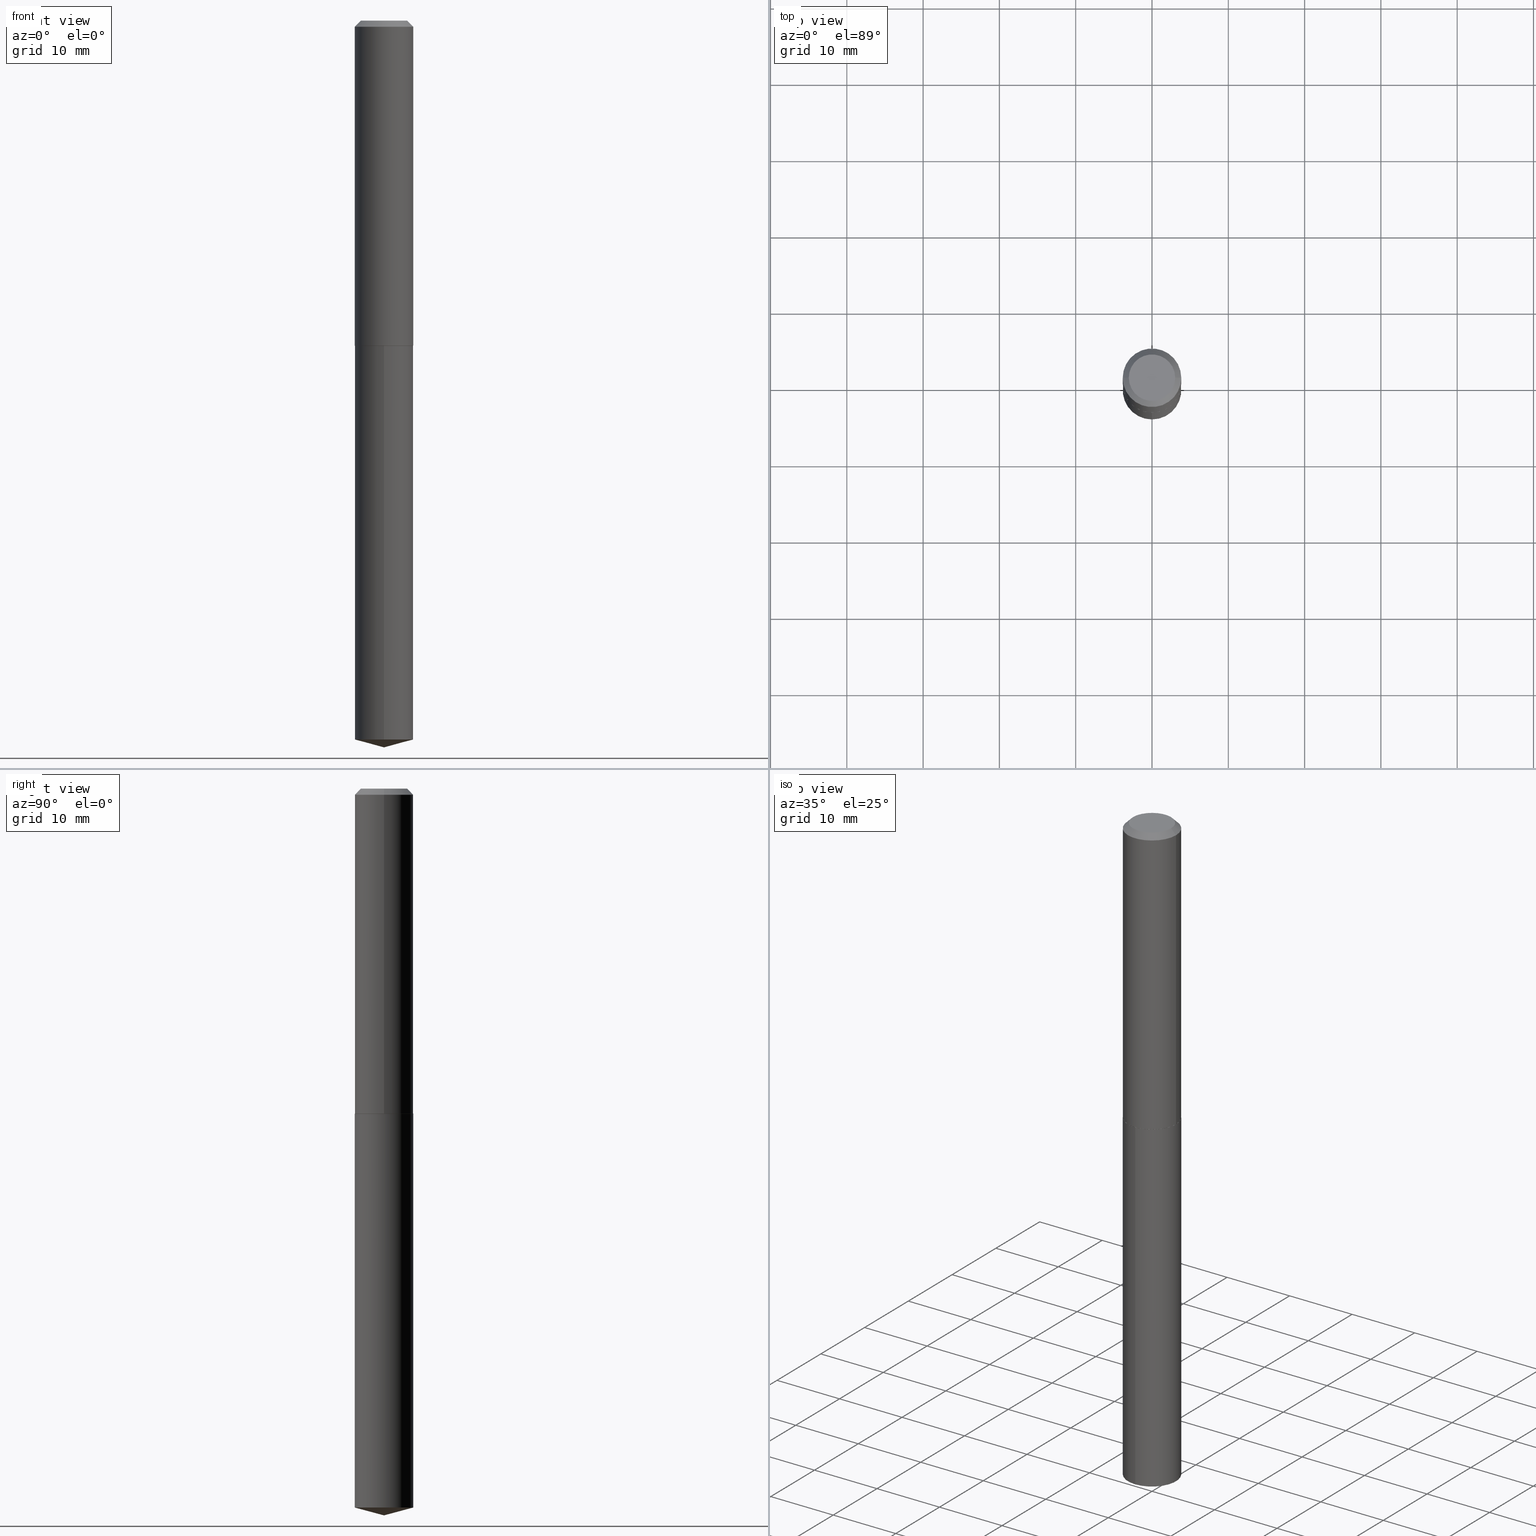
[diagram: canonical four-view strip — front | top / right | iso, engineering-drawing reading convention]
A machine part, canonical four-view strip (front | top / right | iso — engineering-drawing reading convention). The complete STEP part file that produces these views, byte-faithful:
ISO-10303-21;
HEADER;
FILE_DESCRIPTION (( 'STEP AP203' ),
    '1' );
FILE_NAME ('58073.STEP',
    '2024-04-23T01:24:09',
    ( '' ),
    ( '' ),
    'SwSTEP 2.0',
    'SolidWorks 2023',
    '' );
FILE_SCHEMA (( 'CONFIG_CONTROL_DESIGN' ));
ENDSEC;

DATA;
#1 = CALENDAR_DATE ( 2024, 22, 4 ) ;
#2 = DIRECTION ( 'NONE',  ( -2.445468806185136597E-29, 3.491481338843145583E-15, 1.000000000000000000 ) ) ;
#3 = DIRECTION ( 'NONE',  ( 1.000000000000000000, -6.982962677686265133E-15, 0.000000000000000000 ) ) ;
#4 = LINE ( 'NONE', #119, #300 ) ;
#5 = ORIENTED_EDGE ( 'NONE', *, *, #8, .F. ) ;
#6 = ORGANIZATION ( 'UNSPECIFIED', 'UNSPECIFIED', '' ) ;
#7 = FACE_OUTER_BOUND ( 'NONE', #186, .T. ) ;
#8 = EDGE_CURVE ( 'NONE', #70, #251, #219, .T. ) ;
#9 = ORIENTED_EDGE ( 'NONE', *, *, #290, .T. ) ;
#10 = EDGE_CURVE ( 'NONE', #37, #369, #39, .T. ) ;
#11 = DIRECTION ( 'NONE',  ( -2.445468806185136597E-29, 3.491481338843145583E-15, 1.000000000000000000 ) ) ;
#12 = CIRCLE ( 'NONE', #325, 0.1505000000000000782 ) ;
#13 = ORIENTED_EDGE ( 'NONE', *, *, #10, .T. ) ;
#14 = EDGE_LOOP ( 'NONE', ( #134, #77 ) ) ;
#15 = ORIENTED_EDGE ( 'NONE', *, *, #220, .T. ) ;
#16 = EDGE_CURVE ( 'NONE', #185, #73, #54, .T. ) ;
#17 = CARTESIAN_POINT ( 'NONE',  ( -0.1510000000000001896, -4.780548933572781158E-15, -1.676500000000000323 ) ) ;
#18 = DIRECTION ( 'NONE',  ( 0.7071067811865112684, -2.468850131081876830E-15, 0.7071067811865837660 ) ) ;
#19 = ORIENTED_EDGE ( 'NONE', *, *, #153, .T. ) ;
#20 = CYLINDRICAL_SURFACE ( 'NONE', #334, 0.1509999999999999953 ) ;
#21 = ADVANCED_BREP_SHAPE_REPRESENTATION ( '58073', ( #243, #112, #34 ), #327 ) ;
#22 = CIRCLE ( 'NONE', #122, 0.1509999999999999953 ) ;
#23 = AXIS2_PLACEMENT_3D ( 'NONE', #295, #246, #239 ) ;
#24 = CARTESIAN_POINT ( 'NONE',  ( 7.642090019328601786E-31, -1.091087918388490144E-16, -0.03125000000000020123 ) ) ;
#25 = DATE_AND_TIME ( #1, #53 ) ;
#26 = DIRECTION ( 'NONE',  ( -1.000000000000000000, 6.982962677686266711E-15, 0.000000000000000000 ) ) ;
#27 = CARTESIAN_POINT ( 'NONE',  ( 9.170534558798153806E-29, -1.309301702016671200E-14, -3.750000000000000000 ) ) ;
#28 = AXIS2_PLACEMENT_3D ( 'NONE', #89, #183, #272 ) ;
#29 = ADVANCED_FACE ( 'NONE', ( #249 ), #221, .T. ) ;
#30 = CYLINDRICAL_SURFACE ( 'NONE', #242, 0.1509999999999999953 ) ;
#31 = DIRECTION ( 'NONE',  ( -6.982962677686265133E-15, -1.000000000000000000, 3.618341713462600054E-15 ) ) ;
#32 = DIRECTION ( 'NONE',  ( -2.445535815285872487E-29, 3.491385377996970699E-15, 1.000000000000000000 ) ) ;
#33 = ADVANCED_FACE ( 'NONE', ( #136 ), #127, .T. ) ;
#34 = AXIS2_PLACEMENT_3D ( 'NONE', #224, #188, #318 ) ;
#35 = CARTESIAN_POINT ( 'NONE',  ( 7.642090019328601786E-31, -1.091087918388490144E-16, -0.03125000000000020123 ) ) ;
#36 = ORIENTED_EDGE ( 'NONE', *, *, #316, .F. ) ;
#37 = VERTEX_POINT ( 'NONE', #143 ) ;
#38 = ADVANCED_FACE ( 'NONE', ( #79 ), #20, .T. ) ;
#39 = LINE ( 'NONE', #344, #171 ) ;
#40 = VERTEX_POINT ( 'NONE', #200 ) ;
#41 = CIRCLE ( 'NONE', #231, 0.1509999999999999953 ) ;
#42 = ORIENTED_EDGE ( 'NONE', *, *, #166, .F. ) ;
#43 = PERSON_AND_ORGANIZATION ( #160, #6 ) ;
#44 = ORIENTED_EDGE ( 'NONE', *, *, #197, .F. ) ;
#45 = CIRCLE ( 'NONE', #229, 0.1509999999999999953 ) ;
#46 = DIRECTION ( 'NONE',  ( 1.000000000000000000, -6.982962677686265133E-15, 0.000000000000000000 ) ) ;
#47 = DATE_AND_TIME ( #227, #206 ) ;
#48 = LINE ( 'NONE', #167, #60 ) ;
#49 = DATE_TIME_ROLE ( 'creation_date' ) ;
#50 = DIRECTION ( 'NONE',  ( -2.445535815285872767E-29, 3.491385377996970699E-15, 1.000000000000000000 ) ) ;
#51 = DIRECTION ( 'NONE',  ( -2.445535815285872487E-29, 3.491385377996970699E-15, 1.000000000000000000 ) ) ;
#52 = AXIS2_PLACEMENT_3D ( 'NONE', #145, #354, #103 ) ;
#53 = LOCAL_TIME ( 21, 24, 9.000000000000000000, #63 ) ;
#54 = CIRCLE ( 'NONE', #205, 0.1197499999999999953 ) ;
#55 = CARTESIAN_POINT ( 'NONE',  ( 0.000000000000000000, 0.000000000000000000, 0.000000000000000000 ) ) ;
#56 = CARTESIAN_POINT ( 'NONE',  ( 4.101051187972474781E-29, -5.855214205239955684E-15, -1.677000000000000268 ) ) ;
#57 = PRODUCT_DEFINITION ( 'UNKNOWN', '', #382, #68 ) ;
#58 = DIRECTION ( 'NONE',  ( -2.445468806185136597E-29, 3.491481338843145583E-15, 1.000000000000000000 ) ) ;
#59 = AXIS2_PLACEMENT_3D ( 'NONE', #149, #266, #304 ) ;
#60 = VECTOR ( 'NONE', #18, 39.37007874015748143 ) ;
#61 = DIRECTION ( 'NONE',  ( -2.445535815285872487E-29, 3.491385377996970699E-15, 1.000000000000000000 ) ) ;
#62 = VERTEX_POINT ( 'NONE', #138 ) ;
#63 = COORDINATED_UNIVERSAL_TIME_OFFSET ( 5, 0, .BEHIND. ) ;
#64 = CC_DESIGN_PERSON_AND_ORGANIZATION_ASSIGNMENT ( #384, #376, ( #133 ) ) ;
#65 = CARTESIAN_POINT ( 'NONE',  ( 9.170759307322020634E-29, -1.309269516748864239E-14, -3.750000000000000000 ) ) ;
#66 = ORIENTED_EDGE ( 'NONE', *, *, #275, .T. ) ;
#67 = FACE_OUTER_BOUND ( 'NONE', #314, .T. ) ;
#68 = DESIGN_CONTEXT ( 'detailed design', #152, 'design' ) ;
#69 = APPROVAL_PERSON_ORGANIZATION ( #230, #377, #106 ) ;
#70 = VERTEX_POINT ( 'NONE', #169 ) ;
#71 = DIRECTION ( 'NONE',  ( -2.445535815285872767E-29, 3.491385377996970699E-15, 1.000000000000000000 ) ) ;
#72 = ADVANCED_FACE ( 'NONE', ( #232 ), #158, .T. ) ;
#73 = VERTEX_POINT ( 'NONE', #165 ) ;
#74 = LENGTH_MEASURE_WITH_UNIT ( LENGTH_MEASURE( 0.02539999999999999897 ), #250 );
#75 = APPROVAL_PERSON_ORGANIZATION ( #43, #260, #132 ) ;
#76 = EDGE_LOOP ( 'NONE', ( #42, #131 ) ) ;
#77 = ORIENTED_EDGE ( 'NONE', *, *, #16, .T. ) ;
#78 = CALENDAR_DATE ( 2024, 22, 4 ) ;
#79 = FACE_OUTER_BOUND ( 'NONE', #282, .T. ) ;
#80 = CARTESIAN_POINT ( 'NONE',  ( 1.072919530997842164E-15, 0.1509999999999941389, -1.677000000000000712 ) ) ;
#81 = EDGE_CURVE ( 'NONE', #40, #99, #84, .T. ) ;
#82 = DIRECTION ( 'NONE',  ( -2.445535815285872487E-29, 3.491385377996970699E-15, 1.000000000000000000 ) ) ;
#83 = CARTESIAN_POINT ( 'NONE',  ( 4.101051187972474781E-29, -5.855214205239955684E-15, -1.677000000000000268 ) ) ;
#84 = LINE ( 'NONE', #196, #366 ) ;
#85 = VECTOR ( 'NONE', #71, 39.37007874015748143 ) ;
#86 = LOCAL_TIME ( 21, 24, 9.000000000000000000, #355 ) ;
#87 = FACE_OUTER_BOUND ( 'NONE', #296, .T. ) ;
#88 = EDGE_CURVE ( 'NONE', #62, #164, #358, .T. ) ;
#89 = CARTESIAN_POINT ( 'NONE',  ( 4.099828453569381980E-29, -5.853468464570534180E-15, -1.676500000000000323 ) ) ;
#90 = FACE_OUTER_BOUND ( 'NONE', #194, .T. ) ;
#91 = ADVANCED_FACE ( 'NONE', ( #265 ), #141, .F. ) ;
#92 = CIRCLE ( 'NONE', #23, 0.1197499999999999953 ) ;
#93 = CARTESIAN_POINT ( 'NONE',  ( -0.1505000000000000782, -4.783198160746893147E-15, -1.677000000000000490 ) ) ;
#94 = DIRECTION ( 'NONE',  ( -6.982962677686267499E-15, -1.000000000000000000, 3.510303681827568252E-15 ) ) ;
#95 = ORIENTED_EDGE ( 'NONE', *, *, #174, .T. ) ;
#96 = ORIENTED_EDGE ( 'NONE', *, *, #10, .F. ) ;
#97 = ADVANCED_FACE ( 'NONE', ( #111 ), #226, .F. ) ;
#98 = EDGE_LOOP ( 'NONE', ( #96, #303, #222, #379 ) ) ;
#99 = VERTEX_POINT ( 'NONE', #387 ) ;
#100 = CONICAL_SURFACE ( 'NONE', #59, 146.9311341562580253, 1.308996938995752313 ) ;
#101 = ORIENTED_EDGE ( 'NONE', *, *, #166, .T. ) ;
#102 = PERSON_AND_ORGANIZATION ( #160, #6 ) ;
#103 = DIRECTION ( 'NONE',  ( -1.000000000000000000, 6.982962677686266711E-15, 0.000000000000000000 ) ) ;
#104 = DIRECTION ( 'NONE',  ( 2.445535815285872206E-29, -3.491385377996970699E-15, -1.000000000000000000 ) ) ;
#105 = EDGE_CURVE ( 'NONE', #185, #99, #203, .T. ) ;
#106 = APPROVAL_ROLE ( '' ) ;
#107 = AXIS2_PLACEMENT_3D ( 'NONE', #332, #58, #301 ) ;
#108 = CARTESIAN_POINT ( 'NONE',  ( 0.1197499999999999953, -9.832943123677455583E-16, 3.122849337889354629E-19 ) ) ;
#109 = DATE_TIME_ROLE ( 'classification_date' ) ;
#110 = LINE ( 'NONE', #17, #383 ) ;
#111 = FACE_OUTER_BOUND ( 'NONE', #14, .T. ) ;
#112 = MANIFOLD_SOLID_BREP ( 'Body-Move/Copy2[2]', #261 ) ;
#113 = APPROVAL_DATE_TIME ( #25, #312 ) ;
#114 = DIRECTION ( 'NONE',  ( -2.445468806185136597E-29, 3.491481338843145583E-15, 1.000000000000000000 ) ) ;
#115 = VECTOR ( 'NONE', #237, 39.37007874015748143 ) ;
#116 = DIRECTION ( 'NONE',  ( 1.000000000000000000, -6.982962677686267499E-15, 0.000000000000000000 ) ) ;
#117 = DIRECTION ( 'NONE',  ( -6.982962677686265133E-15, -1.000000000000000000, 3.618341713462600054E-15 ) ) ;
#118 = CC_DESIGN_PERSON_AND_ORGANIZATION_ASSIGNMENT ( #102, #255, ( #382 ) ) ;
#119 = CARTESIAN_POINT ( 'NONE',  ( -0.1509999999999999953, 9.453185724917773146E-16, -0.03125000000000020123 ) ) ;
#120 = ORIENTED_EDGE ( 'NONE', *, *, #284, .T. ) ;
#121 = AXIS2_PLACEMENT_3D ( 'NONE', #24, #324, #26 ) ;
#122 = AXIS2_PLACEMENT_3D ( 'NONE', #56, #305, #238 ) ;
#123 = DIRECTION ( 'NONE',  ( -2.445535815285872487E-29, 3.491385377996970699E-15, 1.000000000000000000 ) ) ;
#124 = CC_DESIGN_PERSON_AND_ORGANIZATION_ASSIGNMENT ( #125, #247, ( #273 ) ) ;
#125 = PERSON_AND_ORGANIZATION ( #160, #6 ) ;
#126 = ORIENTED_EDGE ( 'NONE', *, *, #105, .T. ) ;
#127 = CONICAL_SURFACE ( 'NONE', #121, 0.1509999999999999953, 0.7853981633974449483 ) ;
#128 = DIRECTION ( 'NONE',  ( 1.000000000000000000, -6.982962677686267499E-15, 4.876174640205639885E-29 ) ) ;
#129 = ORIENTED_EDGE ( 'NONE', *, *, #275, .F. ) ;
#130 = CC_DESIGN_PERSON_AND_ORGANIZATION_ASSIGNMENT ( #292, #320, ( #382 ) ) ;
#131 = ORIENTED_EDGE ( 'NONE', *, *, #329, .F. ) ;
#132 = APPROVAL_ROLE ( '' ) ;
#133 = SECURITY_CLASSIFICATION ( '', '', #170 ) ;
#134 = ORIENTED_EDGE ( 'NONE', *, *, #197, .T. ) ;
#135 = APPROVAL_DATE_TIME ( #168, #260 ) ;
#136 = FACE_OUTER_BOUND ( 'NONE', #308, .T. ) ;
#137 = PERSON_AND_ORGANIZATION ( #160, #6 ) ;
#138 = CARTESIAN_POINT ( 'NONE',  ( 1.072919530997841769E-15, 0.1509999999999870335, -3.709539671942902128 ) ) ;
#139 = CIRCLE ( 'NONE', #349, 0.1510000000000001896 ) ;
#140 = AXIS2_PLACEMENT_3D ( 'NONE', #35, #114, #3 ) ;
#141 = PLANE ( 'NONE',  #306 ) ;
#142 = DATE_AND_TIME ( #289, #253 ) ;
#143 = CARTESIAN_POINT ( 'NONE',  ( -0.1510000000000001896, -4.780548933572781158E-15, -1.676500000000000323 ) ) ;
#144 = EDGE_CURVE ( 'NONE', #369, #99, #179, .T. ) ;
#145 = CARTESIAN_POINT ( 'NONE',  ( 7.642090019328601786E-31, -1.091087918388490144E-16, -0.03125000000000020123 ) ) ;
#146 = DIRECTION ( 'NONE',  ( -6.745023994389846233E-15, -0.9659258262890687563, 0.2588190451025191852 ) ) ;
#147 = CC_DESIGN_APPROVAL ( #377, ( #57 ) ) ;
#148 = CARTESIAN_POINT ( 'NONE',  ( 4.101051187972474781E-29, -5.855214205239955684E-15, -1.677000000000000268 ) ) ;
#149 = CARTESIAN_POINT ( 'NONE',  ( -8.711029067661992951E-28, 1.243632611501475433E-13, 35.62007874015748143 ) ) ;
#150 = CARTESIAN_POINT ( 'NONE',  ( 4.101051187972475342E-29, -5.855214205239956472E-15, -1.677000000000000490 ) ) ;
#151 = LOCAL_TIME ( 21, 24, 9.000000000000000000, #353 ) ;
#152 = APPLICATION_CONTEXT ( 'configuration controlled 3d designs of mechanical parts and assemblies' ) ;
#153 = EDGE_CURVE ( 'NONE', #372, #37, #110, .T. ) ;
#154 = APPLICATION_PROTOCOL_DEFINITION ( 'international standard', 'config_control_design', 1994, #309 ) ;
#155 = ORIENTED_EDGE ( 'NONE', *, *, #245, .T. ) ;
#156 = DIRECTION ( 'NONE',  ( -2.445468806185136877E-29, 3.491481338843145188E-15, 1.000000000000000000 ) ) ;
#157 = AXIS2_PLACEMENT_3D ( 'NONE', #259, #359, #321 ) ;
#158 = CONICAL_SURFACE ( 'NONE', #52, 0.1509999999999999953, 0.7853981633974449483 ) ;
#159 = ORIENTED_EDGE ( 'NONE', *, *, #316, .T. ) ;
#160 = PERSON ( 'UNSPECIFIED', 'UNSPECIFIED', 'UNSPECIFIED', ('UNSPECIFIED'), ('UNSPECIFIED'), ('UNSPECIFIED') ) ;
#161 = PRODUCT_DEFINITION_SHAPE ( 'NONE', 'NONE',  #57 ) ;
#162 = ORIENTED_EDGE ( 'NONE', *, *, #88, .F. ) ;
#163 = DATE_AND_TIME ( #78, #151 ) ;
#164 = VERTEX_POINT ( 'NONE', #80 ) ;
#165 = CARTESIAN_POINT ( 'NONE',  ( -0.1197499999999999953, 8.907641765723537504E-16, 3.122849337765353630E-19 ) ) ;
#166 = EDGE_CURVE ( 'NONE', #340, #372, #12, .T. ) ;
#167 = CARTESIAN_POINT ( 'NONE',  ( 0.1510000000000001896, -6.907895828901161779E-15, -1.676500000000000323 ) ) ;
#168 = DATE_AND_TIME ( #263, #86 ) ;
#169 = CARTESIAN_POINT ( 'NONE',  ( -1.054427364330535302E-15, -0.1510000000000129294, -3.709539671942900796 ) ) ;
#170 = SECURITY_CLASSIFICATION_LEVEL ( 'unclassified' ) ;
#171 = VECTOR ( 'NONE', #156, 39.37007874015748143 ) ;
#172 = AXIS2_PLACEMENT_3D ( 'NONE', #150, #2, #116 ) ;
#173 = DIRECTION ( 'NONE',  ( -6.982962677686265133E-15, -1.000000000000000000, 3.618341713462600054E-15 ) ) ;
#174 = EDGE_CURVE ( 'NONE', #164, #251, #41, .T. ) ;
#175 = ORIENTED_EDGE ( 'NONE', *, *, #362, .F. ) ;
#176 = FACE_OUTER_BOUND ( 'NONE', #98, .T. ) ;
#177 = CARTESIAN_POINT ( 'NONE',  ( 4.099828453569381980E-29, -5.853468464570534180E-15, -1.676500000000000323 ) ) ;
#178 = DIRECTION ( 'NONE',  ( -2.445468806185136597E-29, 3.491481338843145583E-15, 1.000000000000000000 ) ) ;
#179 = CIRCLE ( 'NONE', #214, 0.1509999999999999953 ) ;
#180 = CARTESIAN_POINT ( 'NONE',  ( 1.975396014675572700E-29, -8.899273398180131149E-15, -1.677000000000000268 ) ) ;
#181 = ORIENTED_EDGE ( 'NONE', *, *, #341, .F. ) ;
#182 = CARTESIAN_POINT ( 'NONE',  ( 9.071699751698236778E-29, -1.295159349606016009E-14, -3.709539671942901684 ) ) ;
#183 = DIRECTION ( 'NONE',  ( -2.445468806185136597E-29, 3.491481338843145583E-15, 1.000000000000000000 ) ) ;
#184 = ADVANCED_FACE ( 'NONE', ( #176 ), #298, .T. ) ;
#185 = VERTEX_POINT ( 'NONE', #108 ) ;
#186 = EDGE_LOOP ( 'NONE', ( #330, #215, #283, #181 ) ) ;
#187 = EDGE_CURVE ( 'NONE', #340, #40, #48, .T. ) ;
#188 = DIRECTION ( 'NONE',  ( 0.000000000000000000, 0.000000000000000000, 1.000000000000000000 ) ) ;
#189 = ORIENTED_EDGE ( 'NONE', *, *, #290, .F. ) ;
#190 = CLOSED_SHELL ( 'NONE', ( #38, #310, #211, #233, #91 ) ) ;
#191 = VECTOR ( 'NONE', #146, 39.37007874015748143 ) ;
#192 = AXIS2_PLACEMENT_3D ( 'NONE', #228, #198, #322 ) ;
#193 =( NAMED_UNIT ( * ) SI_UNIT ( $, .STERADIAN. ) SOLID_ANGLE_UNIT ( ) );
#194 = EDGE_LOOP ( 'NONE', ( #36, #9, #317 ) ) ;
#195 = ORIENTED_EDGE ( 'NONE', *, *, #88, .T. ) ;
#196 = CARTESIAN_POINT ( 'NONE',  ( 0.1510000000000001064, -1.054427364330627007E-15, 7.363026931451867700E-30 ) ) ;
#197 = EDGE_CURVE ( 'NONE', #73, #185, #92, .T. ) ;
#198 = DIRECTION ( 'NONE',  ( -2.445468806185136597E-29, 3.491481338843145583E-15, 1.000000000000000000 ) ) ;
#199 = CC_DESIGN_DATE_AND_TIME_ASSIGNMENT ( #47, #109, ( #133 ) ) ;
#200 = CARTESIAN_POINT ( 'NONE',  ( 0.1510000000000001896, -6.907895828901161779E-15, -1.676500000000000323 ) ) ;
#201 = APPROVAL_DATE_TIME ( #142, #377 ) ;
#202 = CC_DESIGN_PERSON_AND_ORGANIZATION_ASSIGNMENT ( #137, #258, ( #57 ) ) ;
#203 = LINE ( 'NONE', #356, #313 ) ;
#204 = EDGE_LOOP ( 'NONE', ( #338, #126, #120, #175 ) ) ;
#205 = AXIS2_PLACEMENT_3D ( 'NONE', #280, #11, #128 ) ;
#206 = LOCAL_TIME ( 21, 24, 9.000000000000000000, #374 ) ;
#207 = CARTESIAN_POINT ( 'NONE',  ( 7.642090019328601786E-31, -1.091087918388490144E-16, -0.03125000000000020123 ) ) ;
#208 = VERTEX_POINT ( 'NONE', #65 ) ;
#209 = PLANE ( 'NONE',  #373 ) ;
#210 = CARTESIAN_POINT ( 'NONE',  ( 9.170761278101281987E-29, -1.309269516748864239E-14, -3.750000000000000000 ) ) ;
#211 = ADVANCED_FACE ( 'NONE', ( #336 ), #381, .T. ) ;
#212 = CARTESIAN_POINT ( 'NONE',  ( 9.071699751698236778E-29, -1.295159349606016009E-14, -3.709539671942901684 ) ) ;
#213 = AXIS2_PLACEMENT_3D ( 'NONE', #276, #360, #94 ) ;
#214 = AXIS2_PLACEMENT_3D ( 'NONE', #207, #323, #46 ) ;
#215 = ORIENTED_EDGE ( 'NONE', *, *, #329, .T. ) ;
#216 = DIRECTION ( 'NONE',  ( 1.000000000000000000, -6.982962677686265922E-15, 4.876176775795935793E-29 ) ) ;
#217 = ORIENTED_EDGE ( 'NONE', *, *, #144, .T. ) ;
#218 = CC_DESIGN_APPROVAL ( #312, ( #133 ) ) ;
#219 = LINE ( 'NONE', #343, #85 ) ;
#220 = EDGE_CURVE ( 'NONE', #40, #37, #139, .T. ) ;
#221 = CYLINDRICAL_SURFACE ( 'NONE', #277, 0.1510000000000001064 ) ;
#222 = ORIENTED_EDGE ( 'NONE', *, *, #81, .T. ) ;
#223 = APPROVAL_PERSON_ORGANIZATION ( #357, #312, #240 ) ;
#224 = CARTESIAN_POINT ( 'NONE',  ( 0.000000000000000000, 0.000000000000000000, 0.000000000000000000 ) ) ;
#225 = ORIENTED_EDGE ( 'NONE', *, *, #105, .F. ) ;
#226 = PLANE ( 'NONE',  #157 ) ;
#227 = CALENDAR_DATE ( 2024, 22, 4 ) ;
#228 = CARTESIAN_POINT ( 'NONE',  ( 0.000000000000000000, 0.000000000000000000, 0.000000000000000000 ) ) ;
#229 = AXIS2_PLACEMENT_3D ( 'NONE', #182, #123, #339 ) ;
#230 = PERSON_AND_ORGANIZATION ( #160, #6 ) ;
#231 = AXIS2_PLACEMENT_3D ( 'NONE', #328, #51, #173 ) ;
#232 = FACE_OUTER_BOUND ( 'NONE', #204, .T. ) ;
#233 = ADVANCED_FACE ( 'NONE', ( #87 ), #30, .T. ) ;
#234 = CARTESIAN_POINT ( 'NONE',  ( 4.101051187972475342E-29, -5.855214205239956472E-15, -1.677000000000000490 ) ) ;
#235 = CARTESIAN_POINT ( 'NONE',  ( 4.101051187972474781E-29, -5.855214205239955684E-15, -1.677000000000000268 ) ) ;
#236 = SHAPE_DEFINITION_REPRESENTATION ( #161, #21 ) ;
#237 = DIRECTION ( 'NONE',  ( 6.863315791527700570E-15, 0.9659258262890705327, 0.2588190451025124128 ) ) ;
#238 = DIRECTION ( 'NONE',  ( -6.982962677686265133E-15, -1.000000000000000000, 3.618341713462600054E-15 ) ) ;
#239 = DIRECTION ( 'NONE',  ( 1.000000000000000000, -6.982962677686267499E-15, 4.876174640205639885E-29 ) ) ;
#240 = APPROVAL_ROLE ( '' ) ;
#241 = DIRECTION ( 'NONE',  ( -0.7071067811865451302, 2.468850131082231817E-15, -0.7071067811865499042 ) ) ;
#242 = AXIS2_PLACEMENT_3D ( 'NONE', #148, #32, #117 ) ;
#243 = MANIFOLD_SOLID_BREP ( 'Body-Move/Copy2[1]', #190 ) ;
#244 = AXIS2_PLACEMENT_3D ( 'NONE', #177, #178, #269 ) ;
#245 = EDGE_CURVE ( 'NONE', #251, #164, #22, .T. ) ;
#246 = DIRECTION ( 'NONE',  ( -2.445468806185136597E-29, 3.491481338843145583E-15, 1.000000000000000000 ) ) ;
#247 = PERSON_AND_ORGANIZATION_ROLE ( 'design_owner' ) ;
#248 = ORIENTED_EDGE ( 'NONE', *, *, #245, .F. ) ;
#249 = FACE_OUTER_BOUND ( 'NONE', #326, .T. ) ;
#250 =( LENGTH_UNIT ( ) NAMED_UNIT ( * ) SI_UNIT ( $, .METRE. ) );
#251 = VERTEX_POINT ( 'NONE', #363 ) ;
#252 = ORIENTED_EDGE ( 'NONE', *, *, #284, .F. ) ;
#253 = LOCAL_TIME ( 21, 24, 9.000000000000000000, #287 ) ;
#254 = ADVANCED_FACE ( 'NONE', ( #299 ), #209, .F. ) ;
#255 = PERSON_AND_ORGANIZATION_ROLE ( 'creator' ) ;
#256 = ORIENTED_EDGE ( 'NONE', *, *, #187, .F. ) ;
#257 = CARTESIAN_POINT ( 'NONE',  ( 1.072919530997792071E-15, 0.1509999999999941389, -1.677000000000000712 ) ) ;
#258 = PERSON_AND_ORGANIZATION_ROLE ( 'creator' ) ;
#259 = CARTESIAN_POINT ( 'NONE',  ( -3.818415321034376769E-48, 5.451685093518621042E-34, 1.561424668912869378E-19 ) ) ;
#260 = APPROVAL ( #285, 'UNSPECIFIED' ) ;
#261 = CLOSED_SHELL ( 'NONE', ( #72, #29, #279, #254, #267, #184, #33, #97 ) ) ;
#262 = CONICAL_SURFACE ( 'NONE', #244, 0.1510000000000001896, 0.7853981633973970977 ) ;
#263 = CALENDAR_DATE ( 2024, 22, 4 ) ;
#264 = DIRECTION ( 'NONE',  ( 6.982962677686265922E-15, 1.000000000000000000, -3.491385377996970699E-15 ) ) ;
#265 = FACE_OUTER_BOUND ( 'NONE', #351, .T. ) ;
#266 = DIRECTION ( 'NONE',  ( -2.445535815285872487E-29, 3.491385377996970699E-15, 1.000000000000000000 ) ) ;
#267 = ADVANCED_FACE ( 'NONE', ( #7 ), #262, .T. ) ;
#268 = CIRCLE ( 'NONE', #335, 0.1509999999999999953 ) ;
#269 = DIRECTION ( 'NONE',  ( 1.000000000000000000, -6.982962677686266711E-15, 0.000000000000000000 ) ) ;
#270 = DIMENSIONAL_EXPONENTS ( 1.000000000000000000, 0.000000000000000000, 0.000000000000000000, 0.000000000000000000, 0.000000000000000000, 0.000000000000000000, 0.000000000000000000 ) ;
#271 = PRODUCT_RELATED_PRODUCT_CATEGORY ( 'detail', '', ( #273 ) ) ;
#272 = DIRECTION ( 'NONE',  ( 1.000000000000000000, -6.982962677686266711E-15, 0.000000000000000000 ) ) ;
#273 = PRODUCT ( '58073', '58073', '', ( #315 ) ) ;
#274 = CARTESIAN_POINT ( 'NONE',  ( 0.1505000000000000782, -6.906150088231740275E-15, -1.677000000000000490 ) ) ;
#275 = EDGE_CURVE ( 'NONE', #62, #70, #45, .T. ) ;
#276 = CARTESIAN_POINT ( 'NONE',  ( -8.711029067661992951E-28, 1.243632611501475433E-13, 35.62007874015748143 ) ) ;
#277 = AXIS2_PLACEMENT_3D ( 'NONE', #55, #288, #375 ) ;
#278 = ORIENTED_EDGE ( 'NONE', *, *, #174, .F. ) ;
#279 = ADVANCED_FACE ( 'NONE', ( #67 ), #281, .T. ) ;
#280 = CARTESIAN_POINT ( 'NONE',  ( -7.636830642068753538E-48, 1.090337018703724208E-33, 3.122849337825738756E-19 ) ) ;
#281 = CONICAL_SURFACE ( 'NONE', #28, 0.1510000000000001896, 0.7853981633973970977 ) ;
#282 = EDGE_LOOP ( 'NONE', ( #368, #195, #248, #5 ) ) ;
#283 = ORIENTED_EDGE ( 'NONE', *, *, #187, .T. ) ;
#284 = EDGE_CURVE ( 'NONE', #99, #369, #364, .T. ) ;
#285 = APPROVAL_STATUS ( 'not_yet_approved' ) ;
#286 = ORIENTED_EDGE ( 'NONE', *, *, #81, .F. ) ;
#287 = COORDINATED_UNIVERSAL_TIME_OFFSET ( 5, 0, .BEHIND. ) ;
#288 = DIRECTION ( 'NONE',  ( -2.445468806185136597E-29, 3.491481338843145583E-15, 1.000000000000000000 ) ) ;
#289 = CALENDAR_DATE ( 2024, 22, 4 ) ;
#290 = EDGE_CURVE ( 'NONE', #208, #62, #302, .T. ) ;
#291 = DIRECTION ( 'NONE',  ( 1.000000000000000000, -6.982962677686267499E-15, 0.000000000000000000 ) ) ;
#292 = PERSON_AND_ORGANIZATION ( #160, #6 ) ;
#293 = DIRECTION ( 'NONE',  ( -2.445468806185136877E-29, 3.491481338843145188E-15, 1.000000000000000000 ) ) ;
#294 = CC_DESIGN_APPROVAL ( #260, ( #382 ) ) ;
#295 = CARTESIAN_POINT ( 'NONE',  ( -7.636830642068753538E-48, 1.090337018703724208E-33, 3.122849337825738756E-19 ) ) ;
#296 = EDGE_LOOP ( 'NONE', ( #162, #66, #311, #278 ) ) ;
#297 = APPROVAL_STATUS ( 'not_yet_approved' ) ;
#298 = CYLINDRICAL_SURFACE ( 'NONE', #192, 0.1510000000000001064 ) ;
#299 = FACE_OUTER_BOUND ( 'NONE', #76, .T. ) ;
#300 = VECTOR ( 'NONE', #241, 39.37007874015748143 ) ;
#301 = DIRECTION ( 'NONE',  ( 1.000000000000000000, -6.982962677686266711E-15, 0.000000000000000000 ) ) ;
#302 = LINE ( 'NONE', #210, #115 ) ;
#303 = ORIENTED_EDGE ( 'NONE', *, *, #341, .T. ) ;
#304 = DIRECTION ( 'NONE',  ( -6.982962677686267499E-15, -1.000000000000000000, 3.510303681827568252E-15 ) ) ;
#305 = DIRECTION ( 'NONE',  ( -2.445535815285872487E-29, 3.491385377996970699E-15, 1.000000000000000000 ) ) ;
#306 = AXIS2_PLACEMENT_3D ( 'NONE', #83, #104, #264 ) ;
#307 = CC_DESIGN_SECURITY_CLASSIFICATION ( #133, ( #382 ) ) ;
#308 = EDGE_LOOP ( 'NONE', ( #225, #44, #347, #217 ) ) ;
#309 = APPLICATION_CONTEXT ( 'configuration controlled 3d designs of mechanical parts and assemblies' ) ;
#310 = ADVANCED_FACE ( 'NONE', ( #90 ), #100, .T. ) ;
#311 = ORIENTED_EDGE ( 'NONE', *, *, #8, .T. ) ;
#312 = APPROVAL ( #297, 'UNSPECIFIED' ) ;
#313 = VECTOR ( 'NONE', #385, 39.37007874015748143 ) ;
#314 = EDGE_LOOP ( 'NONE', ( #101, #19, #371, #256 ) ) ;
#315 = MECHANICAL_CONTEXT ( 'NONE', #309, 'mechanical' ) ;
#316 = EDGE_CURVE ( 'NONE', #208, #70, #389, .T. ) ;
#317 = ORIENTED_EDGE ( 'NONE', *, *, #345, .F. ) ;
#318 = DIRECTION ( 'NONE',  ( 1.000000000000000000, 0.000000000000000000, 0.000000000000000000 ) ) ;
#319 = EDGE_LOOP ( 'NONE', ( #189, #159, #129 ) ) ;
#320 = PERSON_AND_ORGANIZATION_ROLE ( 'design_supplier' ) ;
#321 = DIRECTION ( 'NONE',  ( -1.000000000000000000, 6.982962677686265922E-15, -4.876176775795935793E-29 ) ) ;
#322 = DIRECTION ( 'NONE',  ( 1.000000000000000000, -6.982962677686266711E-15, 4.876176775795935232E-29 ) ) ;
#323 = DIRECTION ( 'NONE',  ( -2.445468806185136597E-29, 3.491481338843145583E-15, 1.000000000000000000 ) ) ;
#324 = DIRECTION ( 'NONE',  ( 2.445468806185136597E-29, -3.491481338843145583E-15, -1.000000000000000000 ) ) ;
#325 = AXIS2_PLACEMENT_3D ( 'NONE', #234, #378, #291 ) ;
#326 = EDGE_LOOP ( 'NONE', ( #15, #13, #252, #286 ) ) ;
#327 =( GEOMETRIC_REPRESENTATION_CONTEXT ( 3 ) GLOBAL_UNCERTAINTY_ASSIGNED_CONTEXT ( ( #388 ) ) GLOBAL_UNIT_ASSIGNED_CONTEXT ( ( #350, #370, #193 ) ) REPRESENTATION_CONTEXT ( 'NONE', 'WORKASPACE' ) );
#328 = CARTESIAN_POINT ( 'NONE',  ( 4.101051187972474781E-29, -5.855214205239955684E-15, -1.677000000000000268 ) ) ;
#329 = EDGE_CURVE ( 'NONE', #372, #340, #348, .T. ) ;
#330 = ORIENTED_EDGE ( 'NONE', *, *, #153, .F. ) ;
#331 = DIRECTION ( 'NONE',  ( -2.438088387897960049E-29, 3.491481338843145188E-15, 1.000000000000000000 ) ) ;
#332 = CARTESIAN_POINT ( 'NONE',  ( 4.099828453569381980E-29, -5.853468464570534180E-15, -1.676500000000000323 ) ) ;
#333 = CC_DESIGN_DATE_AND_TIME_ASSIGNMENT ( #163, #49, ( #57 ) ) ;
#334 = AXIS2_PLACEMENT_3D ( 'NONE', #235, #82, #352 ) ;
#335 = AXIS2_PLACEMENT_3D ( 'NONE', #212, #61, #31 ) ;
#336 = FACE_OUTER_BOUND ( 'NONE', #319, .T. ) ;
#337 = DIRECTION ( 'NONE',  ( 1.000000000000000000, -6.982962677686266711E-15, 0.000000000000000000 ) ) ;
#338 = ORIENTED_EDGE ( 'NONE', *, *, #16, .F. ) ;
#339 = DIRECTION ( 'NONE',  ( -6.982962677686265133E-15, -1.000000000000000000, 3.618341713462600054E-15 ) ) ;
#340 = VERTEX_POINT ( 'NONE', #274 ) ;
#341 = EDGE_CURVE ( 'NONE', #37, #40, #390, .T. ) ;
#342 = APPLICATION_PROTOCOL_DEFINITION ( 'international standard', 'config_control_design', 1994, #152 ) ;
#343 = CARTESIAN_POINT ( 'NONE',  ( -1.054427364330585000E-15, -0.1510000000000058518, -1.676999999999999602 ) ) ;
#344 = CARTESIAN_POINT ( 'NONE',  ( -0.1510000000000001064, 1.072919530997752036E-15, -7.427591986284911817E-30 ) ) ;
#345 = EDGE_CURVE ( 'NONE', #70, #62, #268, .T. ) ;
#346 = VECTOR ( 'NONE', #50, 39.37007874015748143 ) ;
#347 = ORIENTED_EDGE ( 'NONE', *, *, #362, .T. ) ;
#348 = CIRCLE ( 'NONE', #172, 0.1505000000000000782 ) ;
#349 = AXIS2_PLACEMENT_3D ( 'NONE', #361, #367, #337 ) ;
#350 =( CONVERSION_BASED_UNIT ( 'INCH', #74 ) LENGTH_UNIT ( ) NAMED_UNIT ( #270 ) );
#351 = EDGE_LOOP ( 'NONE', ( #155, #95 ) ) ;
#352 = DIRECTION ( 'NONE',  ( -6.982962677686265133E-15, -1.000000000000000000, 3.618341713462600054E-15 ) ) ;
#353 = COORDINATED_UNIVERSAL_TIME_OFFSET ( 5, 0, .BEHIND. ) ;
#354 = DIRECTION ( 'NONE',  ( 2.445468806185136597E-29, -3.491481338843145583E-15, -1.000000000000000000 ) ) ;
#355 = COORDINATED_UNIVERSAL_TIME_OFFSET ( 5, 0, .BEHIND. ) ;
#356 = CARTESIAN_POINT ( 'NONE',  ( 0.1509999999999999953, -1.145043989502350092E-15, -0.03125000000000020123 ) ) ;
#357 = PERSON_AND_ORGANIZATION ( #160, #6 ) ;
#358 = LINE ( 'NONE', #257, #346 ) ;
#359 = DIRECTION ( 'NONE',  ( 2.438088387897960049E-29, -3.491481338843145188E-15, -1.000000000000000000 ) ) ;
#360 = DIRECTION ( 'NONE',  ( -2.445535815285872487E-29, 3.491385377996970699E-15, 1.000000000000000000 ) ) ;
#361 = CARTESIAN_POINT ( 'NONE',  ( 4.099828453569381980E-29, -5.853468464570534180E-15, -1.676500000000000323 ) ) ;
#362 = EDGE_CURVE ( 'NONE', #73, #369, #4, .T. ) ;
#363 = CARTESIAN_POINT ( 'NONE',  ( -1.054427364330585000E-15, -0.1510000000000058518, -1.676999999999999602 ) ) ;
#364 = CIRCLE ( 'NONE', #140, 0.1509999999999999953 ) ;
#365 = CARTESIAN_POINT ( 'NONE',  ( -0.1509999999999999953, -1.908369097206939012E-15, -0.03125000000000020123 ) ) ;
#366 = VECTOR ( 'NONE', #293, 39.37007874015748143 ) ;
#367 = DIRECTION ( 'NONE',  ( -2.445468806185136597E-29, 3.491481338843145583E-15, 1.000000000000000000 ) ) ;
#368 = ORIENTED_EDGE ( 'NONE', *, *, #345, .T. ) ;
#369 = VERTEX_POINT ( 'NONE', #365 ) ;
#370 =( NAMED_UNIT ( * ) PLANE_ANGLE_UNIT ( ) SI_UNIT ( $, .RADIAN. ) );
#371 = ORIENTED_EDGE ( 'NONE', *, *, #220, .F. ) ;
#372 = VERTEX_POINT ( 'NONE', #93 ) ;
#373 = AXIS2_PLACEMENT_3D ( 'NONE', #180, #331, #216 ) ;
#374 = COORDINATED_UNIVERSAL_TIME_OFFSET ( 5, 0, .BEHIND. ) ;
#375 = DIRECTION ( 'NONE',  ( 1.000000000000000000, -6.982962677686266711E-15, 4.876176775795935232E-29 ) ) ;
#376 = PERSON_AND_ORGANIZATION_ROLE ( 'classification_officer' ) ;
#377 = APPROVAL ( #386, 'UNSPECIFIED' ) ;
#378 = DIRECTION ( 'NONE',  ( -2.445468806185136597E-29, 3.491481338843145583E-15, 1.000000000000000000 ) ) ;
#379 = ORIENTED_EDGE ( 'NONE', *, *, #144, .F. ) ;
#380 = DIRECTION ( 'NONE',  ( -0.7071067811865112684, 7.493145998870223209E-15, 0.7071067811865837660 ) ) ;
#381 = CONICAL_SURFACE ( 'NONE', #213, 146.9311341562580253, 1.308996938995752313 ) ;
#382 = PRODUCT_DEFINITION_FORMATION_WITH_SPECIFIED_SOURCE ( 'ANY', '', #273, .NOT_KNOWN. ) ;
#383 = VECTOR ( 'NONE', #380, 39.37007874015748143 ) ;
#384 = PERSON_AND_ORGANIZATION ( #160, #6 ) ;
#385 = DIRECTION ( 'NONE',  ( 0.7071067811865451302, -7.319954787623248157E-15, -0.7071067811865499042 ) ) ;
#386 = APPROVAL_STATUS ( 'not_yet_approved' ) ;
#387 = CARTESIAN_POINT ( 'NONE',  ( 0.1509999999999999953, -1.163536156169475122E-15, -0.03125000000000020123 ) ) ;
#388 = UNCERTAINTY_MEASURE_WITH_UNIT (LENGTH_MEASURE( 1.000000000000000082E-05 ), #350, 'distance_accuracy_value', 'NONE');
#389 = LINE ( 'NONE', #27, #191 ) ;
#390 = CIRCLE ( 'NONE', #107, 0.1510000000000001896 ) ;
ENDSEC;
END-ISO-10303-21;
